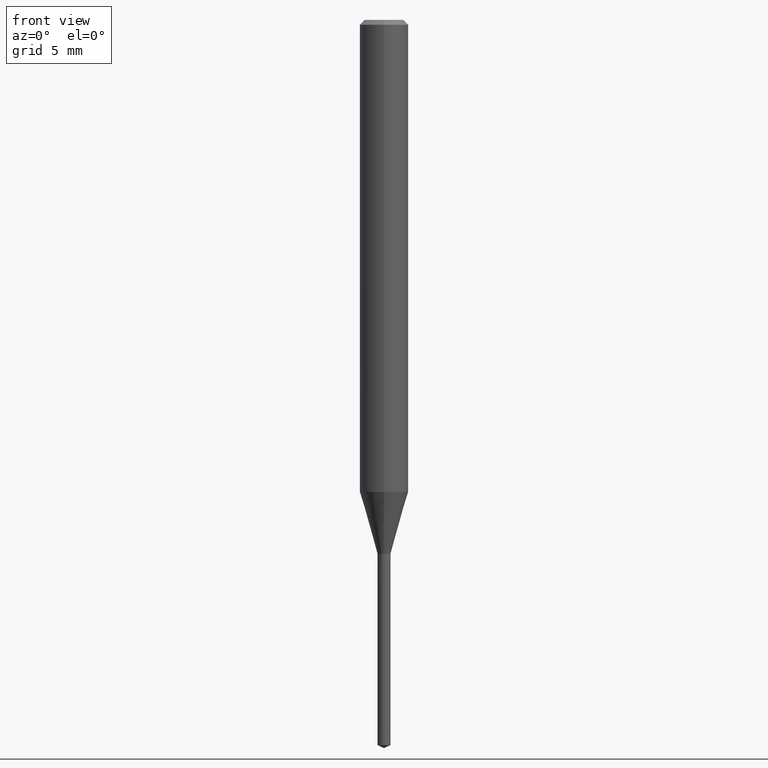
[diagram: clean part render]
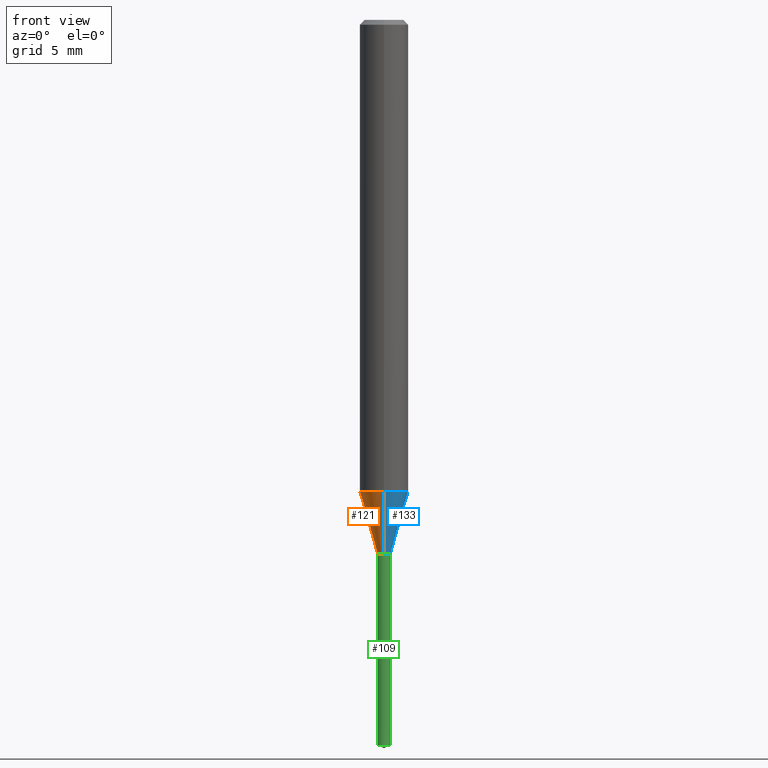
[diagram: same view with three faces highlighted in distinct colors, each labeled with its STEP entity id]
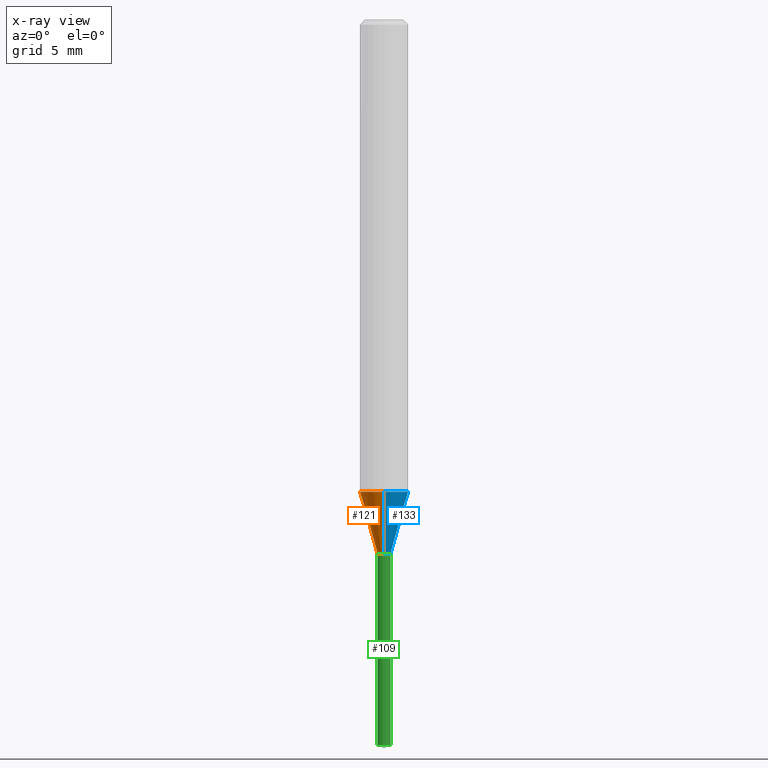
[diagram: x-ray of the same camera — body ghosted, the three highlighted faces saturated]
A machine part, front view with three faces highlighted in distinct colors.
The next image is the same camera in x-ray (body ghosted, the three faces saturated) — at least one of them is partly hidden behind the body in this view.
Their STEP definitions:

[orange] entity #121 — the highlighted conical surface has half-angle 16.004 deg.
#91=VERTEX_POINT('',#226);
#93=EDGE_CURVE('',#167,#91,#228,.T.);
#119=VERTEX_POINT('',#260);
#121=ADVANCED_FACE('',(#262),#263,.T.);
#167=VERTEX_POINT('',#314);
#179=EDGE_CURVE('',#167,#119,#328,.T.);
#193=EDGE_CURVE('',#119,#197,#343,.T.);
#197=VERTEX_POINT('',#347);
#199=EDGE_CURVE('',#197,#91,#349,.T.);
#226=CARTESIAN_POINT('',(0.0,0.4,-32.9991339745962));
#228=CIRCLE('',#371,0.4);
#260=CARTESIAN_POINT('',(1.83690953073357E-016,-1.5,-29.164));
#262=FACE_OUTER_BOUND('',#414,.T.);
#263=CONICAL_SURFACE('',#415,0.95,0.279323280297878);
#314=CARTESIAN_POINT('',(4.89842541528951E-017,-0.4,-32.9991339745962));
#328=LINE('',#493,#494);
#343=CIRCLE('',#515,1.5);
#347=CARTESIAN_POINT('',(0.0,1.5,-29.164));
#349=LINE('',#522,#523);
#371=AXIS2_PLACEMENT_3D('',#535,#536,#537);
#414=EDGE_LOOP('',(#596,#597,#598,#599));
#415=AXIS2_PLACEMENT_3D('',#600,#601,#602);
#493=CARTESIAN_POINT('',(1.16337603613126E-016,-0.95,-31.0815669872981));
#494=VECTOR('',#673,1.0);
#515=AXIS2_PLACEMENT_3D('',#692,#693,#694);
#522=CARTESIAN_POINT('',(-1.16337603613126E-016,0.95,-31.0815669872981));
#523=VECTOR('',#695,1.0);
#535=CARTESIAN_POINT('',(0.0,0.0,-32.9991339745962));
#536=DIRECTION('',(0.0,0.0,-1.0));
#537=DIRECTION('',(0.0,1.0,0.0));
#596=ORIENTED_EDGE('',*,*,#199,.T.);
#597=ORIENTED_EDGE('',*,*,#93,.F.);
#598=ORIENTED_EDGE('',*,*,#179,.T.);
#599=ORIENTED_EDGE('',*,*,#193,.T.);
#600=CARTESIAN_POINT('',(0.0,0.0,-31.0815669872981));
#601=DIRECTION('',(-0.0,-0.0,1.0));
#602=DIRECTION('',(0.0,1.0,0.0));
#673=DIRECTION('',(3.37630364420972E-017,-0.275705220185345,0.961242233551226));
#692=CARTESIAN_POINT('',(0.0,0.0,-29.164));
#693=DIRECTION('',(0.0,0.0,-1.0));
#694=DIRECTION('',(0.0,1.0,0.0));
#695=DIRECTION('',(3.37630364420972E-017,-0.275705220185345,-0.961242233551226));

[blue] entity #133 — the highlighted conical surface has half-angle 16.004 deg.
#91=VERTEX_POINT('',#226);
#99=EDGE_CURVE('',#91,#167,#235,.T.);
#119=VERTEX_POINT('',#260);
#133=ADVANCED_FACE('',(#275),#276,.T.);
#135=EDGE_CURVE('',#197,#119,#278,.T.);
#167=VERTEX_POINT('',#314);
#179=EDGE_CURVE('',#167,#119,#328,.T.);
#197=VERTEX_POINT('',#347);
#199=EDGE_CURVE('',#197,#91,#349,.T.);
#226=CARTESIAN_POINT('',(0.0,0.4,-32.9991339745962));
#235=CIRCLE('',#381,0.4);
#260=CARTESIAN_POINT('',(1.83690953073357E-016,-1.5,-29.164));
#275=FACE_OUTER_BOUND('',#430,.T.);
#276=CONICAL_SURFACE('',#431,0.95,0.279323280297878);
#278=CIRCLE('',#434,1.5);
#314=CARTESIAN_POINT('',(4.89842541528951E-017,-0.4,-32.9991339745962));
#328=LINE('',#493,#494);
#347=CARTESIAN_POINT('',(0.0,1.5,-29.164));
#349=LINE('',#522,#523);
#381=AXIS2_PLACEMENT_3D('',#546,#547,#548);
#430=EDGE_LOOP('',(#613,#614,#615,#616));
#431=AXIS2_PLACEMENT_3D('',#617,#618,#619);
#434=AXIS2_PLACEMENT_3D('',#620,#621,#622);
#493=CARTESIAN_POINT('',(1.16337603613126E-016,-0.95,-31.0815669872981));
#494=VECTOR('',#673,1.0);
#522=CARTESIAN_POINT('',(-1.16337603613126E-016,0.95,-31.0815669872981));
#523=VECTOR('',#695,1.0);
#546=CARTESIAN_POINT('',(0.0,0.0,-32.9991339745962));
#547=DIRECTION('',(0.0,0.0,-1.0));
#548=DIRECTION('',(0.0,1.0,0.0));
#613=ORIENTED_EDGE('',*,*,#199,.F.);
#614=ORIENTED_EDGE('',*,*,#135,.T.);
#615=ORIENTED_EDGE('',*,*,#179,.F.);
#616=ORIENTED_EDGE('',*,*,#99,.F.);
#617=CARTESIAN_POINT('',(0.0,0.0,-31.0815669872981));
#618=DIRECTION('',(-0.0,-0.0,1.0));
#619=DIRECTION('',(0.0,1.0,0.0));
#620=CARTESIAN_POINT('',(0.0,0.0,-29.164));
#621=DIRECTION('',(0.0,0.0,-1.0));
#622=DIRECTION('',(0.0,1.0,0.0));
#673=DIRECTION('',(3.37630364420972E-017,-0.275705220185345,0.961242233551226));
#695=DIRECTION('',(3.37630364420972E-017,-0.275705220185345,-0.961242233551226));

[green] entity #109 — the highlighted conical surface has half-angle 0.005 deg.
#95=EDGE_CURVE('',#171,#147,#230,.T.);
#109=ADVANCED_FACE('',(#248),#249,.T.);
#137=EDGE_CURVE('',#139,#195,#280,.T.);
#139=VERTEX_POINT('',#282);
#147=VERTEX_POINT('',#292);
#171=VERTEX_POINT('',#319);
#185=EDGE_CURVE('',#195,#171,#335,.T.);
#195=VERTEX_POINT('',#345);
#205=EDGE_CURVE('',#139,#147,#355,.T.);
#230=LINE('',#374,#375);
#248=FACE_OUTER_BOUND('',#396,.T.);
#249=CONICAL_SURFACE('',#397,0.4005,8.4649083643237E-005);
#280=LINE('',#437,#438);
#282=CARTESIAN_POINT('',(0.4,4.89842541528951E-017,-44.81347694));
#292=CARTESIAN_POINT('',(-0.4,0.0,-44.81347694));
#319=CARTESIAN_POINT('',(-0.401,0.0,-33.0));
#335=CIRCLE('',#502,0.401);
#345=CARTESIAN_POINT('',(0.401,4.91067147882773E-017,-33.0));
#355=CIRCLE('',#533,0.4);
#374=CARTESIAN_POINT('',(-0.4005,-4.90454844705862E-017,-38.90673847));
#375=VECTOR('',#538,1.0);
#396=EDGE_LOOP('',(#575,#576,#577,#578));
#397=AXIS2_PLACEMENT_3D('',#579,#580,#581);
#437=CARTESIAN_POINT('',(0.4005,4.90454844705862E-017,-38.90673847));
#438=VECTOR('',#623,1.0);
#502=AXIS2_PLACEMENT_3D('',#682,#683,#684);
#533=AXIS2_PLACEMENT_3D('',#700,#701,#702);
#538=DIRECTION('',(8.46490835421453E-005,1.03661805550952E-020,-0.999999996417266));
#575=ORIENTED_EDGE('',*,*,#95,.T.);
#576=ORIENTED_EDGE('',*,*,#205,.F.);
#577=ORIENTED_EDGE('',*,*,#137,.T.);
#578=ORIENTED_EDGE('',*,*,#185,.T.);
#579=CARTESIAN_POINT('',(0.0,0.0,-38.90673847));
#580=DIRECTION('',(-0.0,-0.0,1.0));
#581=DIRECTION('',(-1.0,0.0,0.0));
#623=DIRECTION('',(8.46490835421453E-005,1.03661805550952E-020,0.999999996417266));
#682=CARTESIAN_POINT('',(0.0,0.0,-33.0));
#683=DIRECTION('',(0.0,0.0,-1.0));
#684=DIRECTION('',(-1.0,0.0,0.0));
#700=CARTESIAN_POINT('',(0.0,0.0,-44.81347694));
#701=DIRECTION('',(0.0,0.0,-1.0));
#702=DIRECTION('',(-1.0,0.0,0.0));